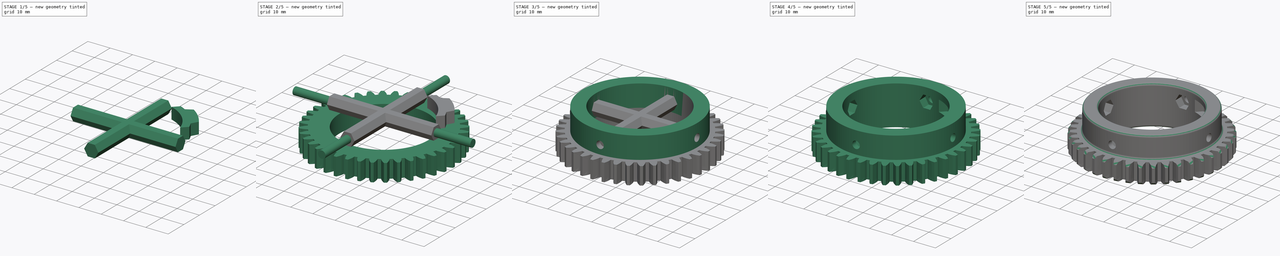
[diagram: build sequence overview — one tinted view per stage of 5, left to right]
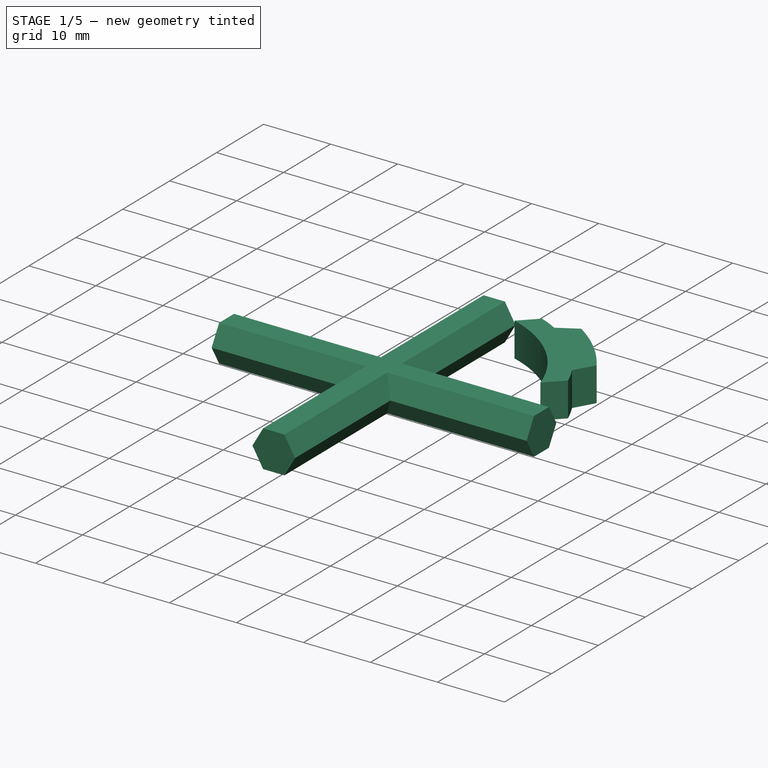
[diagram: stage 1 of 5 — iso view after this stage's code; geometry added in this stage tinted green]
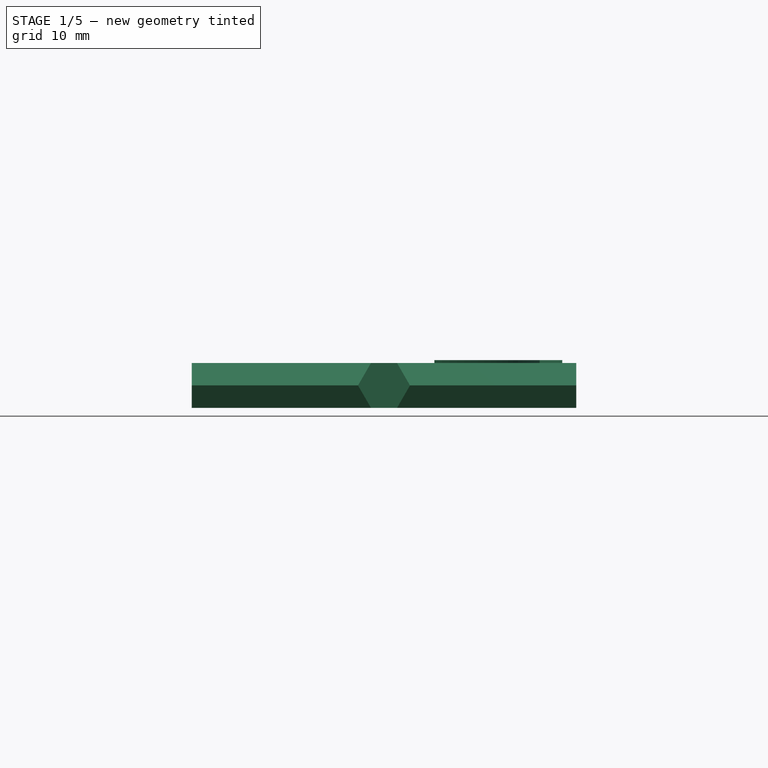
[diagram: stage 1 of 5 — front view after this stage's code; geometry added in this stage tinted green]
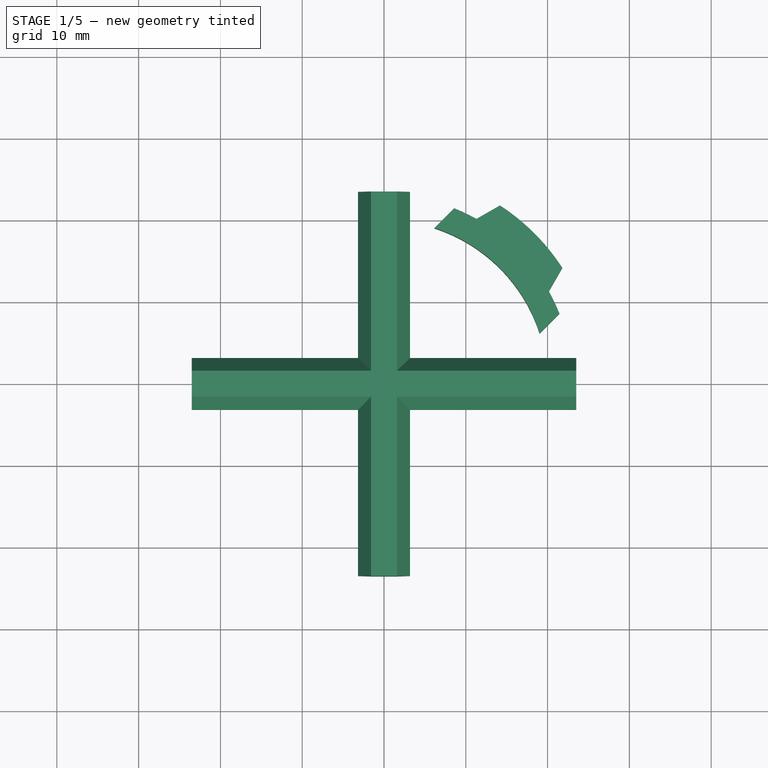
[diagram: stage 1 of 5 — top view after this stage's code; geometry added in this stage tinted green]
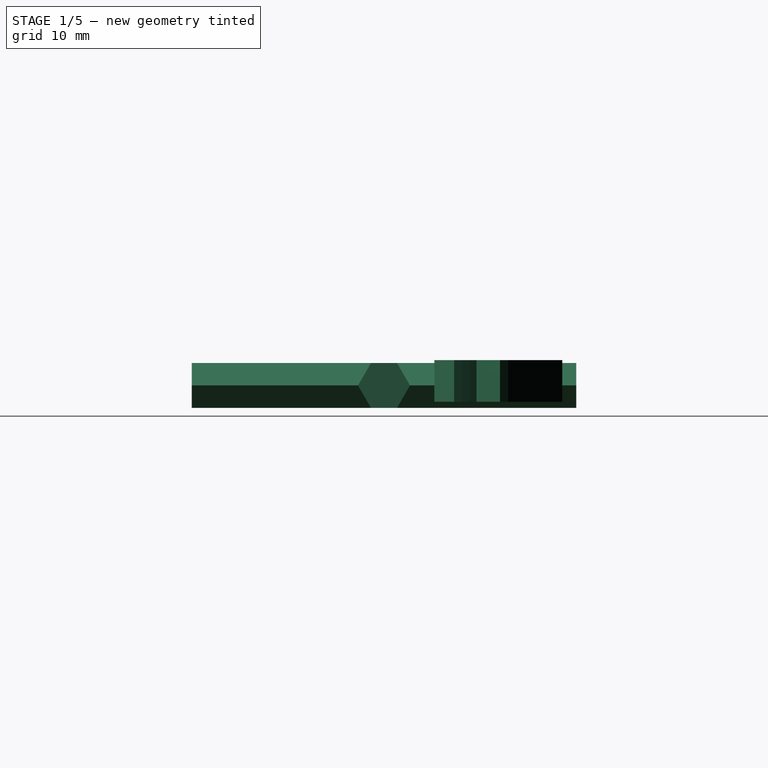
[diagram: stage 1 of 5 — right view after this stage's code; geometry added in this stage tinted green]
FCSTD DOCUMENT  (FreeCAD 0.16RUnknown)
Label: axis_gear_as5601
License: CreativeCommons Attribution-ShareAlike
LicenseURL: http://creativecommons.org/licenses/by-sa/4.0/
objects: Sketcher::SketchObject×7, PartDesign::Pad×6, Part::Cut×5, PartDesign::Fillet×2, PartDesign::Chamfer×2, Part::FeaturePython×1, PartDesign::Pocket×1
note: 31 computed .brp shape members not serialized (recipe doc carries the construction recipe); baked Part::Feature solids carry a one-line shape summary decoded from their .brp

FEATURE [Sketcher::SketchObject] Sketch004  label="Sketch-M3nut-pocket1"
  Placement = pos=(0,0,0) rot=(1,0,0;1.5708rad)
  sketch-geometry (7):
    g0: LineSegment StartX=1.58771 StartY=9.25 StartZ=0 EndX=3.17543 EndY=12 EndZ=0
    g1: LineSegment StartX=3.17543 StartY=12 StartZ=0 EndX=1.58771 EndY=14.75 EndZ=0
    g2: LineSegment StartX=1.58771 StartY=14.75 StartZ=0 EndX=-1.58771 EndY=14.75 EndZ=0
    g3: LineSegment StartX=-1.58771 StartY=14.75 StartZ=0 EndX=-3.17543 EndY=12 EndZ=0
    g4: LineSegment StartX=-3.17543 StartY=12 StartZ=0 EndX=-1.58771 EndY=9.25 EndZ=0
    g5: LineSegment StartX=-1.58771 StartY=9.25 StartZ=0 EndX=1.58771 EndY=9.25 EndZ=0
    g6: Circle [constr] CenterX=0 CenterY=12 CenterZ=0 NormalX=0 NormalY=0 NormalZ=1 Radius=3.17543
  constraints (17):
    c: Coincident(g0,g1)
    c: Coincident(g1,g2)
    c: Coincident(g2,g3)
    c: Coincident(g3,g4)
    c: Coincident(g4,g5)
    c: Coincident(g5,g0)
    c: Equal(g0, g1-g5) x5
    c: PointOnObject(g0,g6)
    c: PointOnObject(g1,g6)
    c: PointOnObject(g2,g6)
    c: PointOnObject(g3,g6)
    c: PointOnObject(g4,g6)
    c: PointOnObject(g5,g6)
    c: PointOnObject(g6,g-2)
    c: Horizontal(g5)
    c: DistanceY(g0,g1) = 5.5
    c: DistanceY(g-1,g6) = 12
FEATURE [PartDesign::Pad] Pad003  label="Pad-M3nut-pocket1"
  Length = 47
  Length2 = 100
  Midplane = true
  Placement = pos=(0,0,0) rot=(1,0,0;1.5708rad)
  Sketch = -> Sketch004
  Type = 0
FEATURE [Sketcher::SketchObject] Sketch005  label="Sketch-M3nut-pocket2"
  Placement = pos=(0,0,0) rot=(0.57735,0.57735,0.57735;2.0944rad)
  sketch-geometry (7):
    g0: LineSegment StartX=1.58771 StartY=9.25 StartZ=0 EndX=3.17543 EndY=12 EndZ=0
    g1: LineSegment StartX=3.17543 StartY=12 StartZ=0 EndX=1.58771 EndY=14.75 EndZ=0
    g2: LineSegment StartX=1.58771 StartY=14.75 StartZ=0 EndX=-1.58771 EndY=14.75 EndZ=0
    g3: LineSegment StartX=-1.58771 StartY=14.75 StartZ=0 EndX=-3.17543 EndY=12 EndZ=0
    g4: LineSegment StartX=-3.17543 StartY=12 StartZ=0 EndX=-1.58771 EndY=9.25 EndZ=0
    g5: LineSegment StartX=-1.58771 StartY=9.25 StartZ=0 EndX=1.58771 EndY=9.25 EndZ=0
    g6: Circle [constr] CenterX=0 CenterY=12 CenterZ=0 NormalX=0 NormalY=0 NormalZ=1 Radius=3.17543
  constraints (17):
    c: Coincident(g0,g1)
    c: Coincident(g1,g2)
    c: Coincident(g2,g3)
    c: Coincident(g3,g4)
    c: Coincident(g4,g5)
    c: Coincident(g5,g0)
    c: Equal(g0, g1-g5) x5
    c: PointOnObject(g0,g6)
    c: PointOnObject(g1,g6)
    c: PointOnObject(g2,g6)
    c: PointOnObject(g3,g6)
    c: PointOnObject(g4,g6)
    c: PointOnObject(g5,g6)
    c: PointOnObject(g6,g-2)
    c: Horizontal(g5)
    c: DistanceY(g0,g1) = 5.5
    c: DistanceY(g-1,g6) = 12
FEATURE [PartDesign::Pad] Pad004  label="Pad-M3nut-pocket2"
  Length = 47
  Length2 = 100
  Midplane = true
  Placement = pos=(0,0,0) rot=(0.57735,0.57735,0.57735;2.0944rad)
  Sketch = -> Sketch005
  Type = 0
FEATURE [Sketcher::SketchObject] Sketch007  label="Sketch-homing-ring"
  Placement = pos=(0,0,10) rot=(0,0,1;0rad)
  sketch-geometry (12):
    g0: ArcOfCircle CenterX=0 CenterY=0 CenterZ=0 NormalX=0 NormalY=0 NormalZ=1 Radius=23.1 StartAngle=1.05938 EndAngle=1.19031
    g1: ArcOfCircle CenterX=0 CenterY=0 CenterZ=0 NormalX=0 NormalY=0 NormalZ=1 Radius=23.1 StartAngle=0.380485 EndAngle=0.511421
    g2: ArcOfCircle CenterX=0 CenterY=0 CenterZ=0 NormalX=0 NormalY=0 NormalZ=1 Radius=20 StartAngle=0.313026 EndAngle=1.25777
    g3: LineSegment StartX=19.0281 StartY=6.15878 StartZ=0 EndX=21.448 EndY=8.57866 EndZ=0
    g4: LineSegment StartX=6.15878 StartY=19.0281 StartZ=0 EndX=8.57866 EndY=21.448 EndZ=0
    g5: LineSegment StartX=11.3055 StartY=20.1444 StartZ=0 EndX=14.1806 EndY=21.7925 EndZ=0
    g6: LineSegment StartX=20.1444 StartY=11.3055 StartZ=0 EndX=21.7925 EndY=14.1806 EndZ=0
    g7: ArcOfCircle CenterX=0 CenterY=0 CenterZ=0 NormalX=0 NormalY=0 NormalZ=1 Radius=26 StartAngle=0.576875 EndAngle=0.993921
    g8: LineSegment [constr] StartX=14.1806 StartY=21.7925 StartZ=0 EndX=19.2239 EndY=24.6835 EndZ=0
    g9: LineSegment [constr] StartX=21.7925 StartY=14.1806 StartZ=0 EndX=24.6835 EndY=19.2239 EndZ=0
    g10: ArcOfCircle [constr] CenterX=21.2132 CenterY=21.2132 CenterZ=0 NormalX=0 NormalY=0 NormalZ=1 Radius=4 StartAngle=5.76268 EndAngle=8.37449
    g11: LineSegment [constr] StartX=21.2132 StartY=21.2132 StartZ=0 EndX=0 EndY=0 EndZ=0
  constraints (35):
    c: Coincident(g0,g-1)
    c: Coincident(g1,g-1)
    c: Coincident(g2,g-1)
    c: Coincident(g3,g1)
    c: Coincident(g4,g2)
    c: Coincident(g4,g0)
    c: Coincident(g5,g0)
    c: Coincident(g6,g1)
    c: Parallel(g4,g3)
    c: Coincident(g7,g-1)
    c: Coincident(g7,g5)
    c: Coincident(g7,g6)
    c: Radius(g7) = 26
    c: Radius(g2) = 20
    c: Coincident(g2,g3)
    c: Radius(g1) = 23.1
    c: Coincident(g8,g5)
    c: Coincident(g9,g6)
    c: Coincident(g10,g8)
    c: Coincident(g9,g10)
    c: Tangent(g10,g8)
    c: Tangent(g10,g9)
    c: Radius(g10) = 4
    c: Tangent(g5,g8)
    c: Tangent(g6,g9)
    c: Coincident(g11,g10)
    c: Coincident(g11,g-1)
    c: Distance(g0,g1) = 12.5
    c: Angle(g-1,g11) = 0.785398
    c: Distance(g11) = 30
    c: Symmetric(g5,g6,g11)
    c: Equal(g4,g3)
    c: Equal(g5,g6)
    c: Symmetric(g1,g0,g11)
    c: Distance(g2,g2) = 18.2
FEATURE [PartDesign::Pad] Pad005  label="Pad-homing-ring"
  Length = 5.1
  Length2 = 100
  Placement = pos=(0,0,10) rot=(0,0,1;0rad)
  Sketch = -> Sketch007
  Type = 0
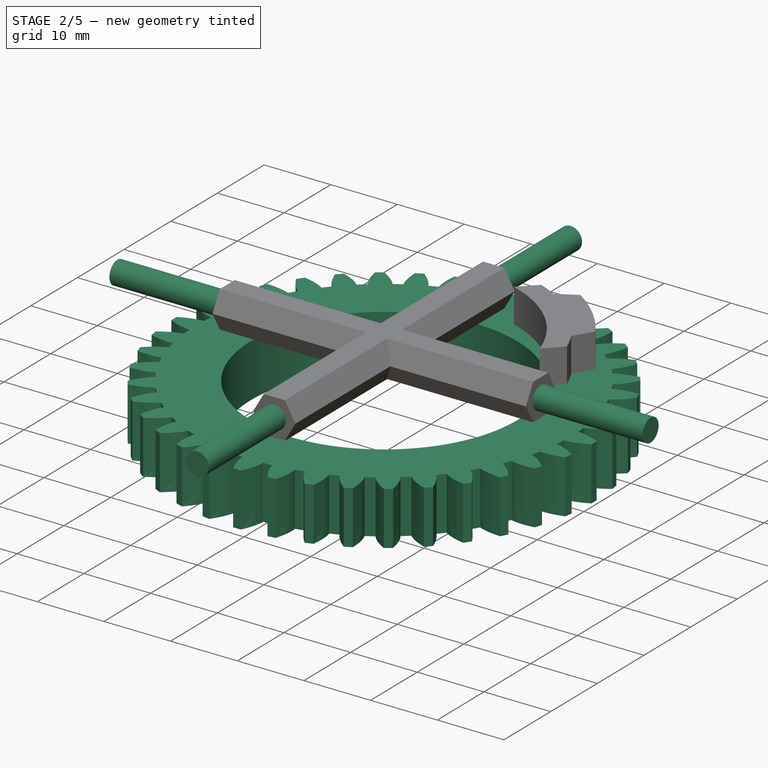
[diagram: stage 2 of 5 — iso view after this stage's code; geometry added in this stage tinted green]
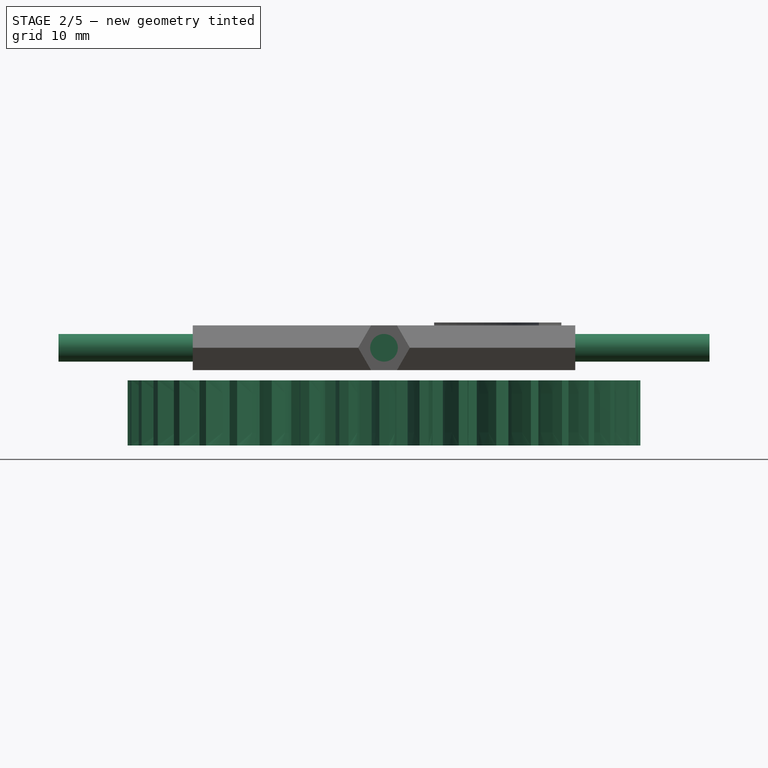
[diagram: stage 2 of 5 — front view after this stage's code; geometry added in this stage tinted green]
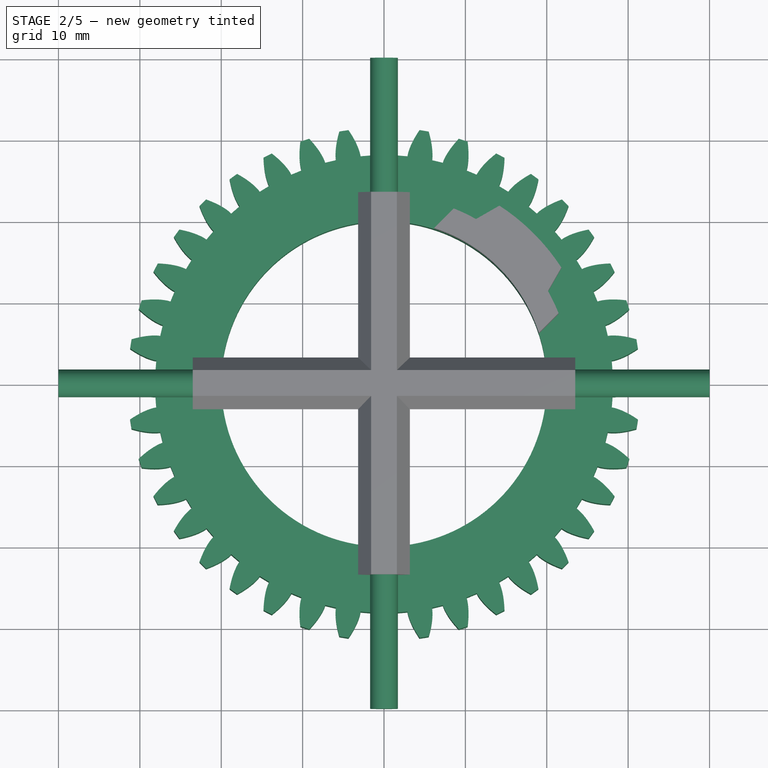
[diagram: stage 2 of 5 — top view after this stage's code; geometry added in this stage tinted green]
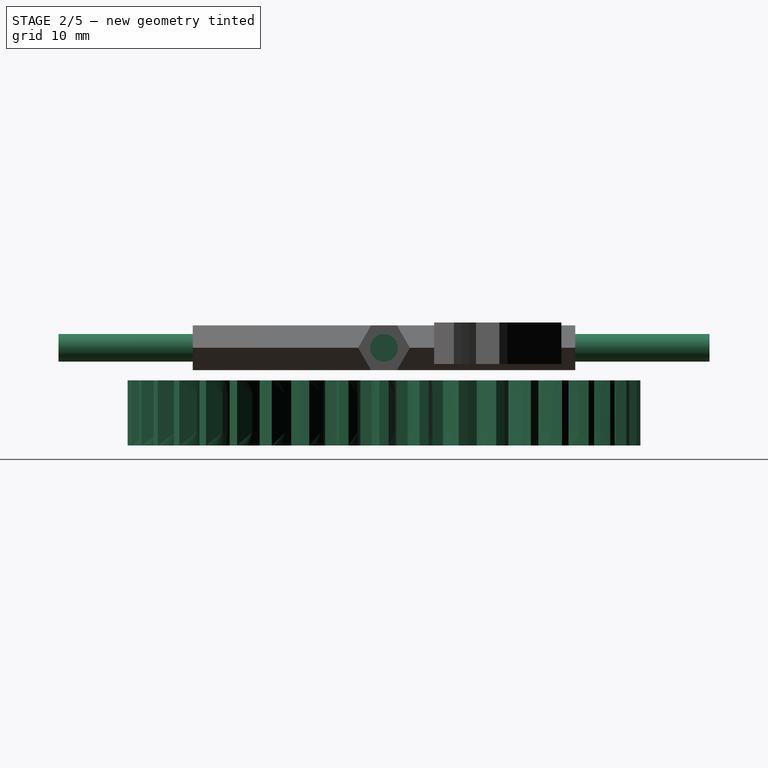
[diagram: stage 2 of 5 — right view after this stage's code; geometry added in this stage tinted green]
FEATURE [Part::FeaturePython] InvoluteGear  # WARN: FeaturePython — macro-defined, semantics opaque (R4)
  backlash = 0
  beta = 0
  clearance = 0.25
  height = 8
  module = 1.5
  numpoints = 6
  pressure_angle = 20
  shift = 0
  simple = false
  teeth = 40
  undercut = false
FEATURE [Sketcher::SketchObject] Sketch  label="Sketch-axis"
  Placement = pos=(0,0,8) rot=(0,0,1;0rad)
  Support = -> InvoluteGear [Face242]
  sketch-geometry (1):
    g0: Circle CenterX=0 CenterY=0 CenterZ=0 NormalX=0 NormalY=0 NormalZ=1 Radius=20
  constraints (2):
    c: Coincident(g0,g-1)
    c: Radius(g0) = 20
FEATURE [PartDesign::Pocket] Pocket  label="Pocket-axis"
  Length = 5
  Sketch = -> Sketch
  Type = 1
FEATURE [Sketcher::SketchObject] Sketch002  label="Sketch-mount-axis1"
  Placement = pos=(0,0,0) rot=(1,0,0;1.5708rad)
  sketch-geometry (1):
    g0: Circle CenterX=0 CenterY=12 CenterZ=0 NormalX=0 NormalY=0 NormalZ=1 Radius=1.7
  constraints (3):
    c: PointOnObject(g0,g-2)
    c: DistanceY(g-1,g0) = 12
    c: Radius(g0) = 1.7
FEATURE [PartDesign::Pad] Pad001  label="Pad-mount-axis1"
  Length = 80
  Length2 = 100
  Midplane = true
  Placement = pos=(0,0,0) rot=(1,0,0;1.5708rad)
  Sketch = -> Sketch002
  Type = 0
FEATURE [Sketcher::SketchObject] Sketch003  label="Sketch-mount-axis2"
  Placement = pos=(0,0,0) rot=(0.57735,0.57735,0.57735;2.0944rad)
  sketch-geometry (1):
    g0: Circle CenterX=0 CenterY=12 CenterZ=0 NormalX=0 NormalY=0 NormalZ=1 Radius=1.7
  constraints (3):
    c: PointOnObject(g0,g-2)
    c: Radius(g0) = 1.7
    c: DistanceY(g-1,g0) = 12
FEATURE [PartDesign::Pad] Pad002  label="Pad-mount-axis2"
  Length = 80
  Length2 = 100
  Midplane = true
  Placement = pos=(0,0,0) rot=(0.57735,0.57735,0.57735;2.0944rad)
  Sketch = -> Sketch003
  Type = 0
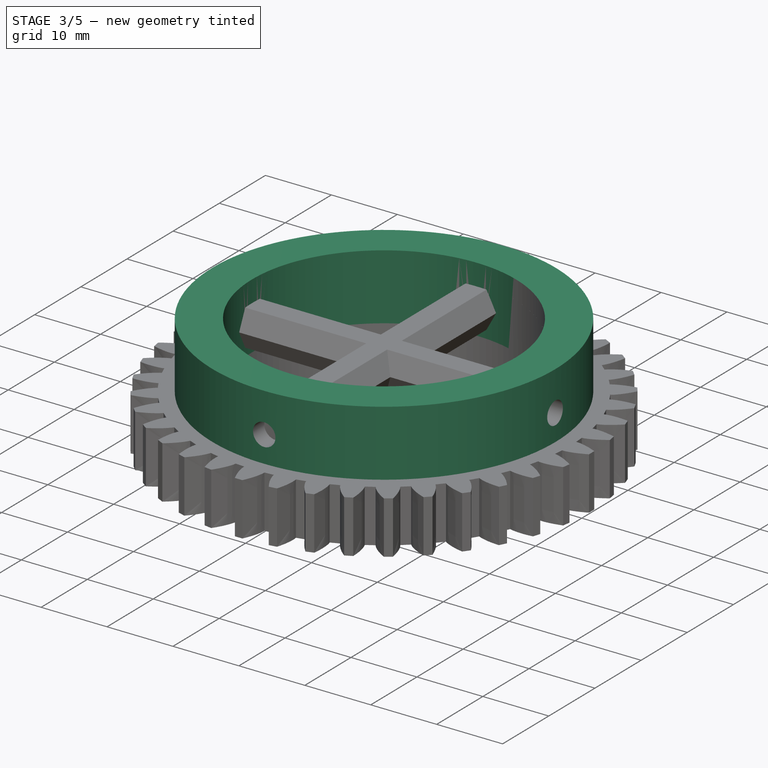
[diagram: stage 3 of 5 — iso view after this stage's code; geometry added in this stage tinted green]
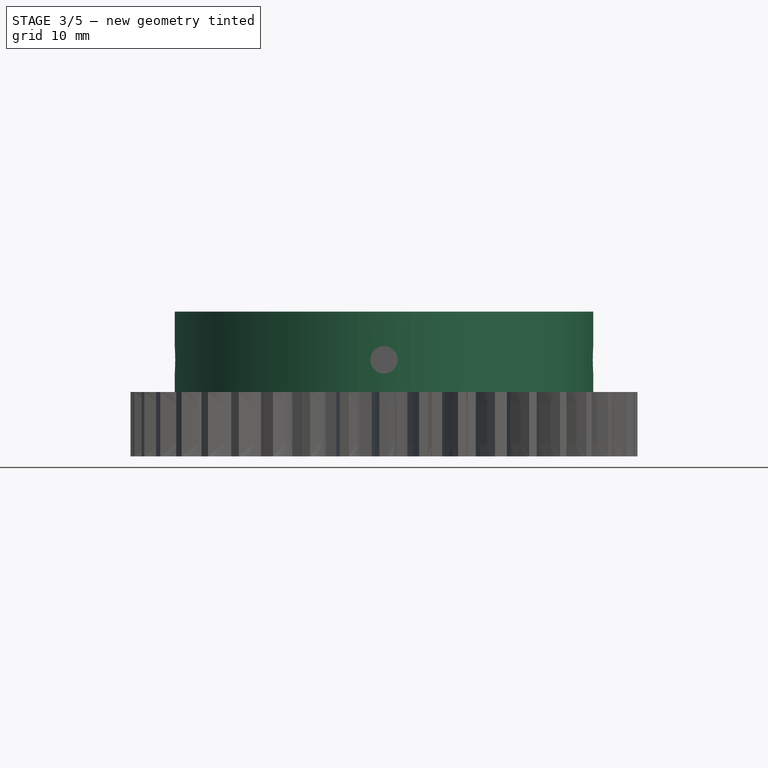
[diagram: stage 3 of 5 — front view after this stage's code; geometry added in this stage tinted green]
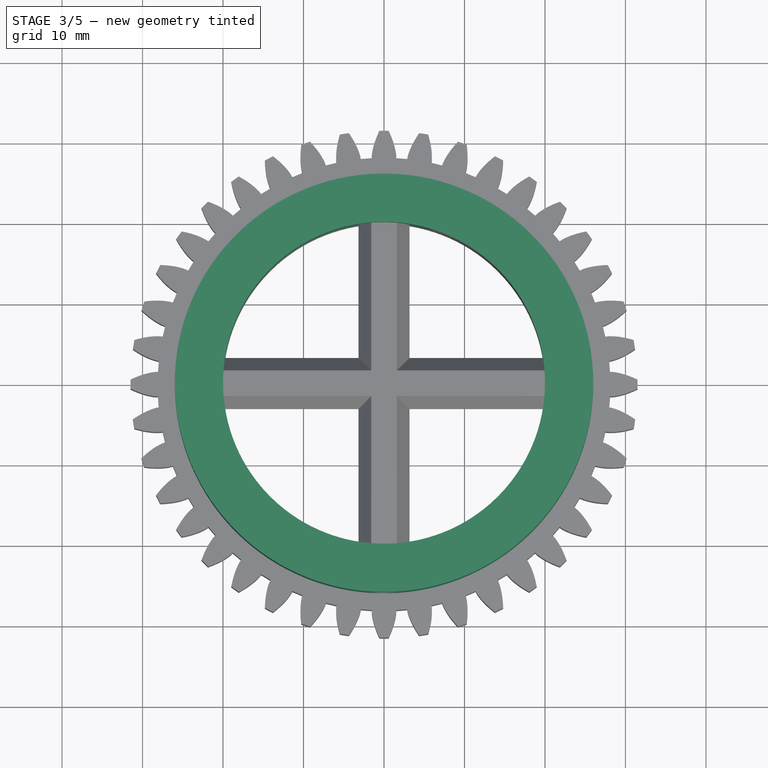
[diagram: stage 3 of 5 — top view after this stage's code; geometry added in this stage tinted green]
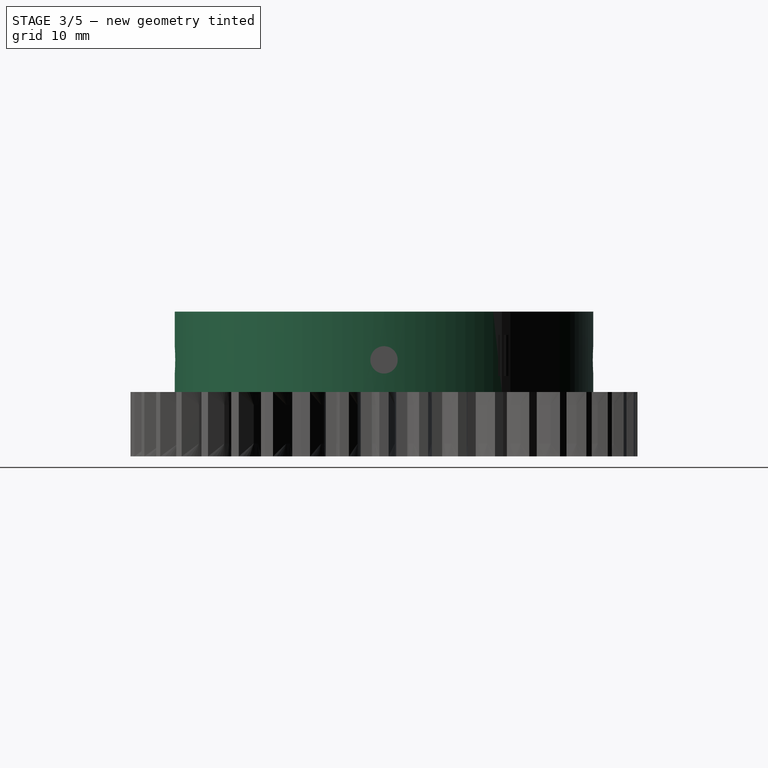
[diagram: stage 3 of 5 — right view after this stage's code; geometry added in this stage tinted green]
FEATURE [Sketcher::SketchObject] Sketch001  label="Sketch-mount"
  ExternalGeometry = -> [Pocket]
  Placement = pos=(0,0,8) rot=(0,0,1;0rad)
  Support = -> Pocket [Face5]
  sketch-geometry (2):
    g0: Circle CenterX=0 CenterY=0 CenterZ=0 NormalX=0 NormalY=0 NormalZ=1 Radius=26
    g1: Circle CenterX=0 CenterY=0 CenterZ=0 NormalX=0 NormalY=0 NormalZ=1 Radius=20
  constraints (4):
    c: Coincident(g0,g-1)
    c: Coincident(g1,g-1)
    c: Equal(g1,g-3)
    c: Radius(g0) = 26
FEATURE [PartDesign::Pad] Pad  label="Pad-mount"
  Length = 10
  Length2 = 100
  Sketch = -> Sketch001
  Type = 0
FEATURE [Part::Cut] Cut
  Base = -> Pad
  Tool = -> Pad001
FEATURE [Part::Cut] Cut001
  Base = -> Cut
  Tool = -> Pad002
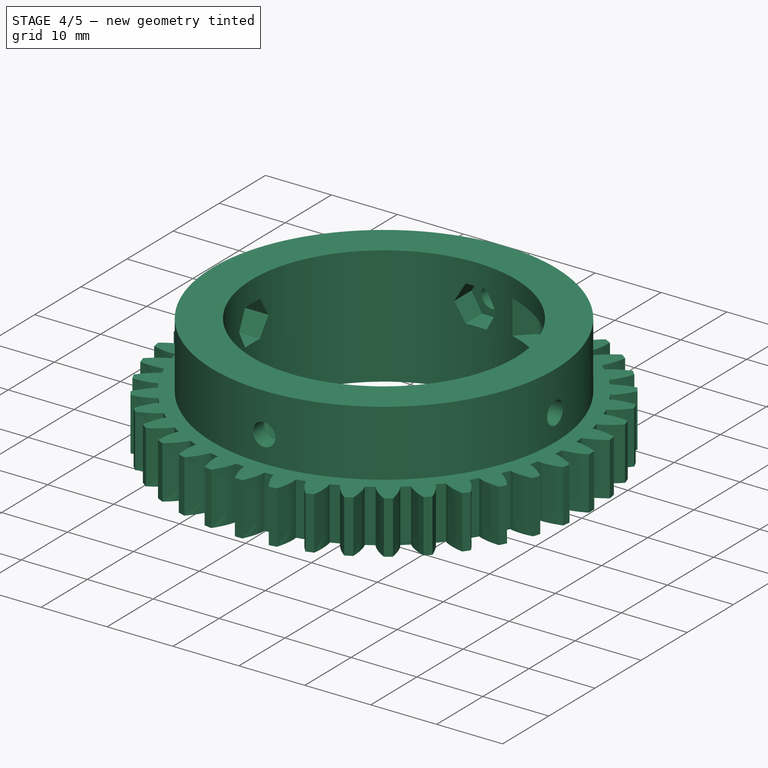
[diagram: stage 4 of 5 — iso view after this stage's code; geometry added in this stage tinted green]
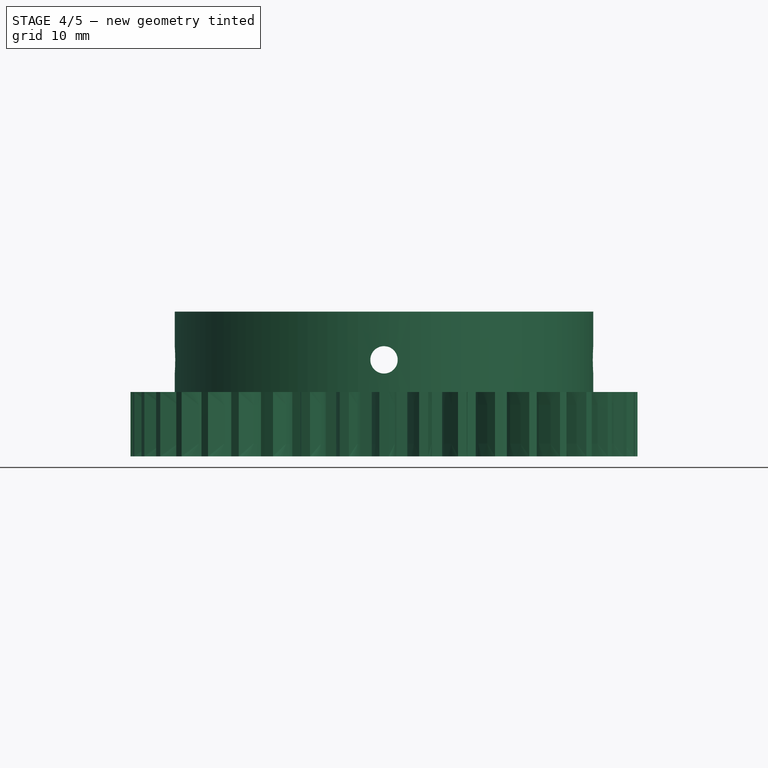
[diagram: stage 4 of 5 — front view after this stage's code; geometry added in this stage tinted green]
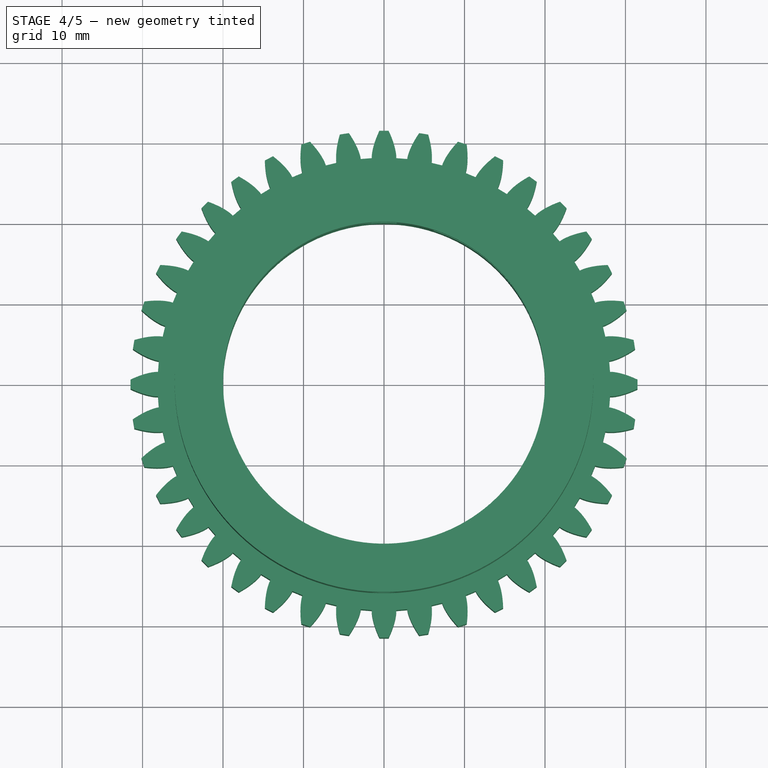
[diagram: stage 4 of 5 — top view after this stage's code; geometry added in this stage tinted green]
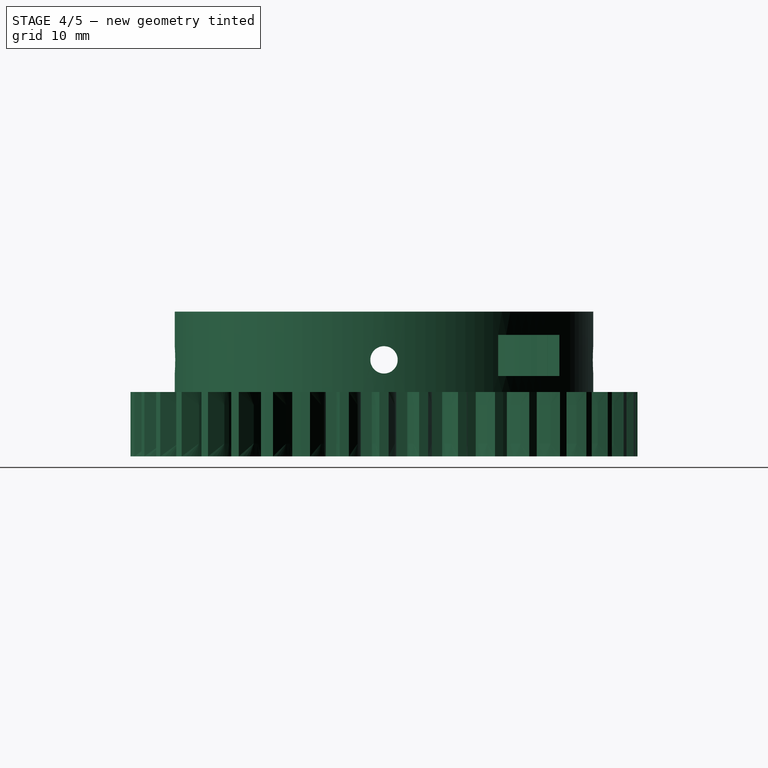
[diagram: stage 4 of 5 — right view after this stage's code; geometry added in this stage tinted green]
FEATURE [Part::Cut] Cut002
  Base = -> Cut001
  Tool = -> Pad003
FEATURE [Part::Cut] Cut003
  Base = -> Cut002
  Tool = -> Pad004
FEATURE [Part::Cut] Cut004
  Base = -> Cut003
  Tool = -> Pad005
FEATURE [PartDesign::Fillet] Fillet
  Base = -> Cut004 [Edge779,Edge786,Edge806,Edge805]
  Radius = 1
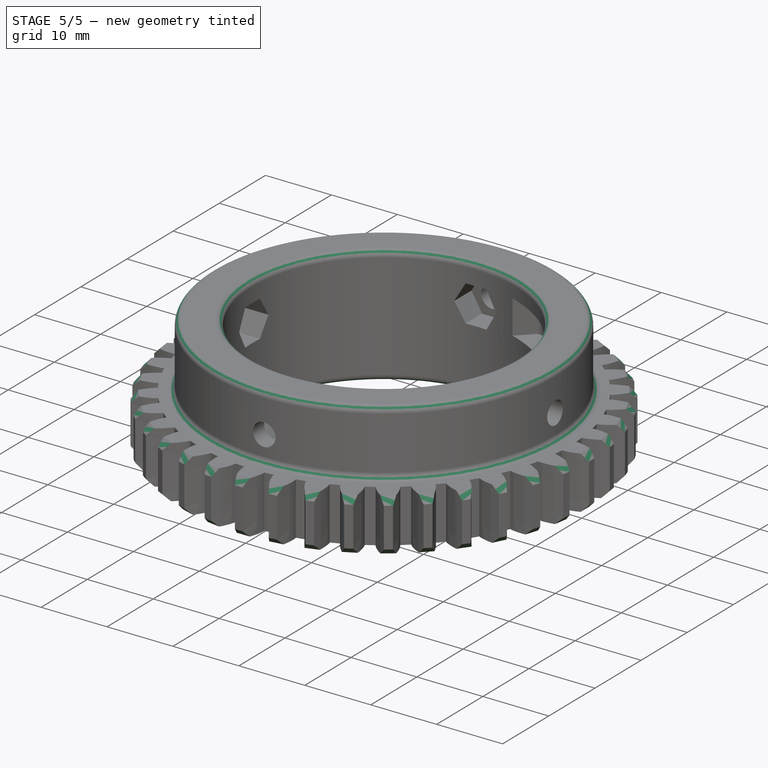
[diagram: stage 5 of 5 — iso view after this stage's code; geometry added in this stage tinted green]
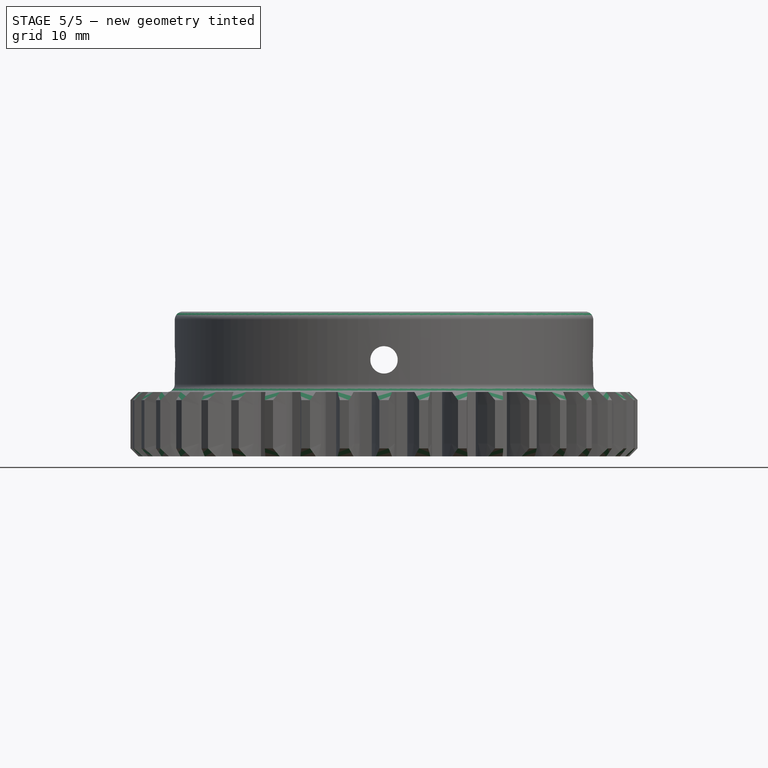
[diagram: stage 5 of 5 — front view after this stage's code; geometry added in this stage tinted green]
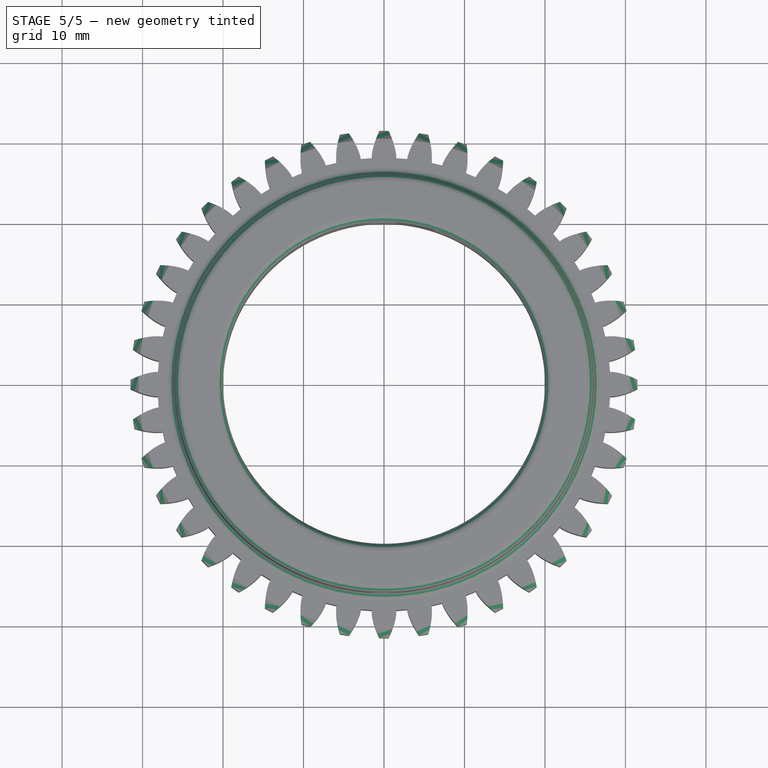
[diagram: stage 5 of 5 — top view after this stage's code; geometry added in this stage tinted green]
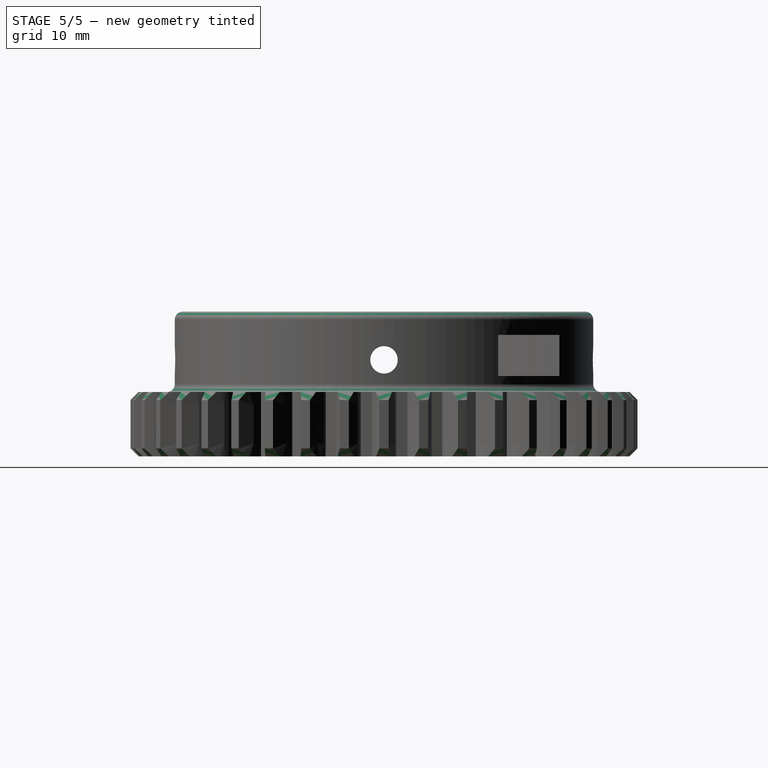
[diagram: stage 5 of 5 — right view after this stage's code; geometry added in this stage tinted green]
FEATURE [PartDesign::Fillet] Fillet001
  Base = -> Fillet [Edge42,Edge27,Edge30,Edge338]
  Radius = 1
FEATURE [PartDesign::Chamfer] Chamfer
  Base = -> Fillet001 [Edge126,Edge114,Edge102,Edge90,Edge78,Edge66,Edge54,Edge59,Edge71,Edge83,Edge95,Edge107,Edge119,Edge131,Edge143,Edge155,Edge167,Edge179,Edge191,Edge203,Edge215,Edge227,Edge239,Edge251,Edge263,Edge275,Edge287,Edge282,Edge270,Edge258,Edge246,Edge234,Edge222,Edge210,Edge198,Edge186,Edge174,Edge162,Edge150,Edge138]
  Size = 1
FEATURE [PartDesign::Chamfer] Chamfer001
  Base = -> Chamfer [Edge819,Edge817,Edge815,Edge813,Edge811,Edge809,Edge807,Edge804,Edge806,Edge808,Edge810,Edge812,Edge814,Edge816,Edge818,Edge820,Edge822,Edge824,Edge826,Edge828,Edge830,Edge832,Edge834,Edge836,Edge838,Edge840,Edge842,Edge844,Edge843,Edge841,Edge839,Edge837,Edge835,Edge833,Edge831,Edge829,Edge827,Edge825,Edge823,Edge821]
  Size = 1
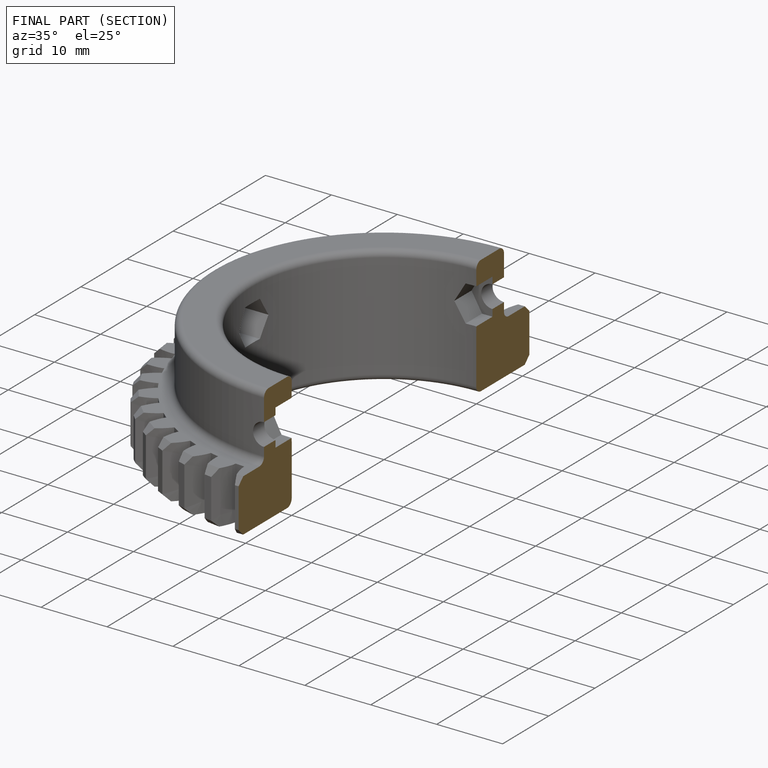
[diagram: finished part — half-section view (interior)]
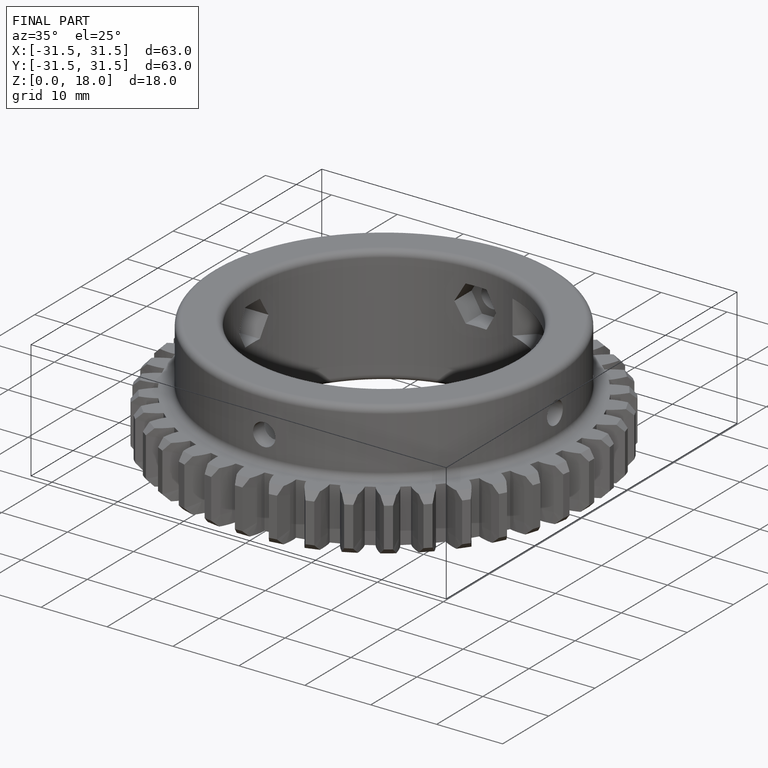
[diagram: finished part — iso view with bounding-box wireframe]
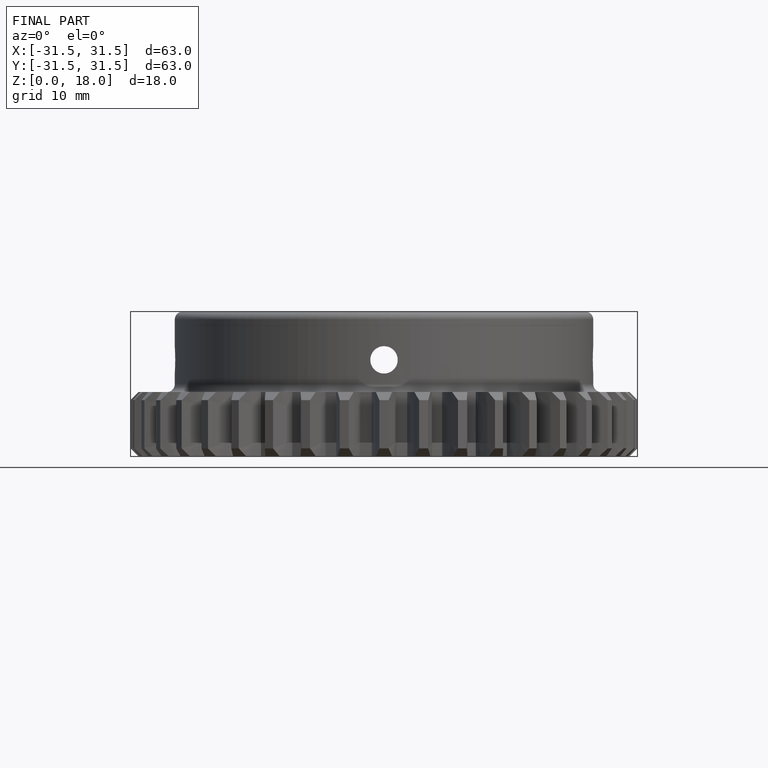
[diagram: finished part — front view with bounding-box wireframe]
